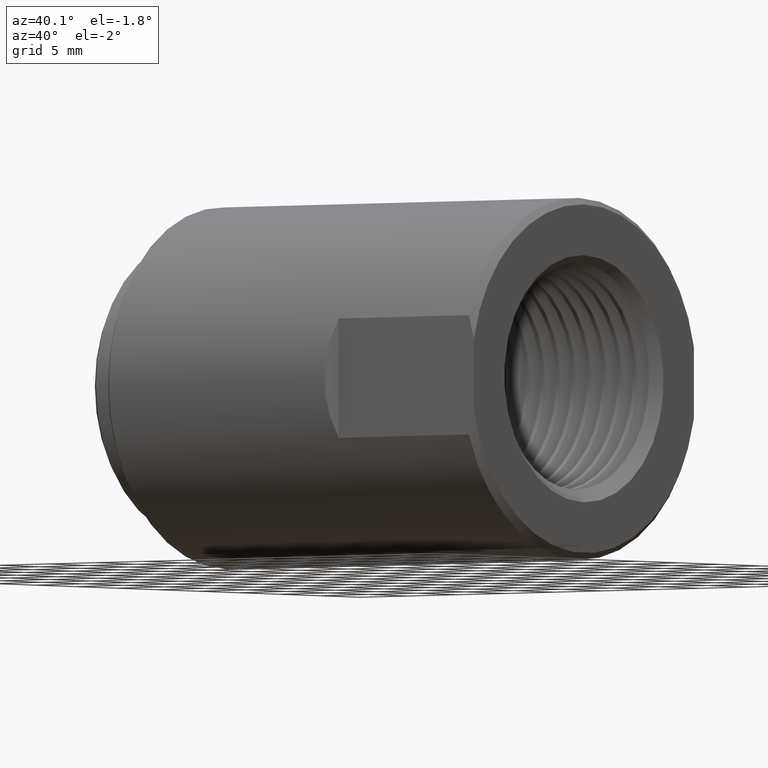
[diagram: clean part render]
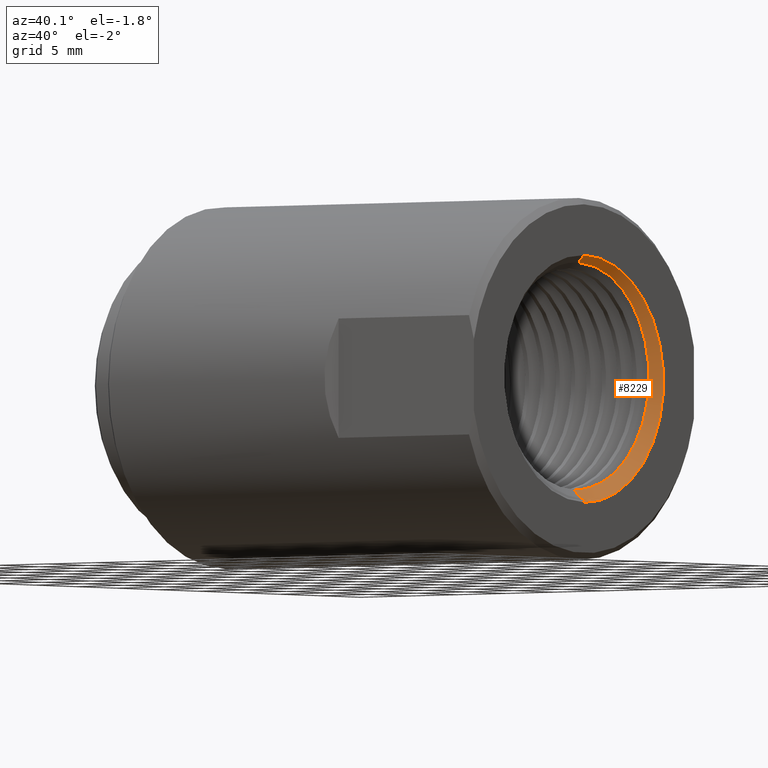
[diagram: same view with one face highlighted and labeled with its STEP entity id]
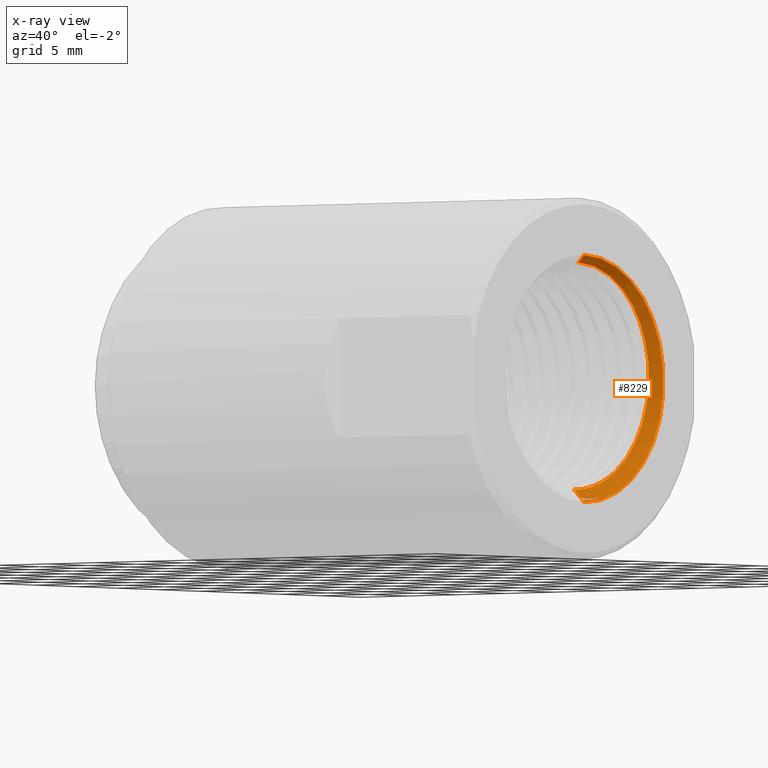
[diagram: x-ray of the same camera — body ghosted, the highlighted face saturated]
A machine part, auxiliary view. The second image highlights one B-rep face of the part: STEP entity #8229.
The next image is the same camera in x-ray: the body ghosted, the highlighted face saturated — about 0% of this face is hidden behind the body in this view.
In plain terms, the highlighted conical surface has half-angle 45 deg.
Its self-contained STEP definition (entity closure, byte-faithful):
#27 = CARTESIAN_POINT ( 'NONE',  ( 1.216849786774984343, 0.3493540093110745204, -0.03905227375527819955 ) ) ;
#50 = CARTESIAN_POINT ( 'NONE',  ( 1.243829117187500222, 0.09245632877387756354, -0.3668901671180582191 ) ) ;
#70 = CARTESIAN_POINT ( 'NONE',  ( 1.209999999999999964, 0.0000000000000000000, 0.0000000000000000000 ) ) ;
#137 = DIRECTION ( 'NONE',  ( 0.0000000000000000000, 0.0000000000000000000, 1.000000000000000000 ) ) ;
#295 = CARTESIAN_POINT ( 'NONE',  ( 1.250000000000000222, 0.0000000000000000000, 0.0000000000000000000 ) ) ;
#370 = CARTESIAN_POINT ( 'NONE',  ( 1.209999999999999964, 0.0000000000000000000, -0.3445312500000002331 ) ) ;
#417 = DIRECTION ( 'NONE',  ( 0.0000000000000000000, 0.0000000000000000000, -1.000000000000000000 ) ) ;
#524 = CARTESIAN_POINT ( 'NONE',  ( 1.250000000000000222, 0.0000000000000000000, -0.3845312500000003242 ) ) ;
#636 = CARTESIAN_POINT ( 'NONE',  ( 1.220653087215327615, 0.3134417992242269912, 0.1683160716923188804 ) ) ;
#680 = EDGE_CURVE ( 'NONE', #6292, #2899, #5685, .T. ) ;
#689 = CARTESIAN_POINT ( 'NONE',  ( 1.243829117187500222, 0.09245632877387756354, -0.3668901671180582191 ) ) ;
#716 = LINE ( 'NONE', #4379, #7811 ) ;
#760 = DIRECTION ( 'NONE',  ( -1.000000000000000000, -0.0000000000000000000, -0.0000000000000000000 ) ) ;
#885 = ORIENTED_EDGE ( 'NONE', *, *, #4357, .T. ) ;
#942 = CARTESIAN_POINT ( 'NONE',  ( 1.211885850623436234, 0.2160057076829183242, -0.2715927350444220512 ) ) ;
#1064 = CARTESIAN_POINT ( 'NONE',  ( 1.215932984245895021, 0.3395704241186347505, -0.08903494850300590346 ) ) ;
#1168 = DIRECTION ( 'NONE',  ( -1.000000000000000000, -0.0000000000000000000, -0.0000000000000000000 ) ) ;
#1256 = VERTEX_POINT ( 'NONE', #50 ) ;
#1331 = FACE_OUTER_BOUND ( 'NONE', #10155, .T. ) ;
#1430 = CARTESIAN_POINT ( 'NONE',  ( 1.226749488695773049, 0.04068672301004401526, 0.3595522263509164373 ) ) ;
#1551 = CARTESIAN_POINT ( 'NONE',  ( 1.222779556418133184, 0.2401296560682735504, 0.2653847520004636307 ) ) ;
#1559 = EDGE_CURVE ( 'NONE', #10875, #1256, #5657, .T. ) ;
#1721 = CARTESIAN_POINT ( 'NONE',  ( 1.238096552073818302, 4.563374450830151142E-17, -0.3726278020738184038 ) ) ;
#1727 = CARTESIAN_POINT ( 'NONE',  ( 1.215373208228787361, 0.3296514127122945892, -0.1177523029988790382 ) ) ;
#1752 = VERTEX_POINT ( 'NONE', #2846 ) ;
#1843 = CARTESIAN_POINT ( 'NONE',  ( 1.213136831506379965, 0.2675798709583786517, -0.2222088372663625633 ) ) ;
#1844 = CARTESIAN_POINT ( 'NONE',  ( 1.250000000000000222, 4.709149644846310570E-17, 0.3845312500000003242 ) ) ;
#1922 = B_SPLINE_CURVE_WITH_KNOTS ( 'NONE', 3,
 ( #7859, #9895, #1430, #5086, #10624, #11540, #2379, #4365, #2443, #1551, #5204, #6107, #8879, #636, #7976, #3397, #2497, #6161, #7310, #3564, #4537, #3691, #1965, #10136, #27, #6463, #1064, #1727, #7369, #9173, #11166, #9296, #5615, #1843, #3755, #7251, #4722, #942, #5495, #8395, #4600, #5433 ),
 .UNSPECIFIED., .F., .F.,
 ( 4, 2, 2, 2, 2, 2, 2, 2, 2, 2, 2, 2, 2, 2, 2, 2, 2, 2, 2, 2, 4 ),
 ( 0.02455092494079050974, 0.02610590275230841723, 0.02766088056382632471, 0.02921585837534423219, 0.03077083618686214314, 0.03232581399838005409, 0.03388079180989796158, 0.03543576962141586906, 0.03621325852717482280, 0.03699074743293377654, 0.03854572524445168402, 0.03932321415021063082, 0.04010070305596957763, 0.04165568086748748511, 0.04243316977324644579, 0.04321065867900539259, 0.04476563649052330007, 0.04554312539628224688, 0.04632061430204119368, 0.04787559211355910116, 0.04943056992507700170 ),
 .UNSPECIFIED. ) ;
#1965 = CARTESIAN_POINT ( 'NONE',  ( 1.217384145309095445, 0.3519595648555721157, -0.008517391885710171029 ) ) ;
#2379 = CARTESIAN_POINT ( 'NONE',  ( 1.224577951368953865, 0.1569011873644657329, 0.3236528847656646724 ) ) ;
#2443 = CARTESIAN_POINT ( 'NONE',  ( 1.223491400804909590, 0.2086464212371320626, 0.2916628110146198827 ) ) ;
#2497 = CARTESIAN_POINT ( 'NONE',  ( 1.219544793446149855, 0.3360668240153213970, 0.1119482197738754653 ) ) ;
#2540 = CARTESIAN_POINT ( 'NONE',  ( 1.243829117187500222, 4.633578126003893285E-17, -0.3783603671875002128 ) ) ;
#2550 = CARTESIAN_POINT ( 'NONE',  ( 1.250000000000000222, 0.0000000000000000000, -0.3845312500000003242 ) ) ;
#2597 = ORIENTED_EDGE ( 'NONE', *, *, #4453, .T. ) ;
#2641 = VERTEX_POINT ( 'NONE', #1844 ) ;
#2775 = AXIS2_PLACEMENT_3D ( 'NONE', #7184, #760, #9952 ) ;
#2846 = CARTESIAN_POINT ( 'NONE',  ( 1.250000000000000222, 0.0000000000000000000, -0.3845312500000003242 ) ) ;
#2899 = VERTEX_POINT ( 'NONE', #370 ) ;
#3397 = CARTESIAN_POINT ( 'NONE',  ( 1.219729728432891402, 0.3328988366051963133, 0.1215798709143322831 ) ) ;
#3399 = LINE ( 'NONE', #2550, #6781 ) ;
#3508 = CARTESIAN_POINT ( 'NONE',  ( 1.238096552073818302, 4.563374450830151142E-17, -0.3726278020738184038 ) ) ;
#3564 = CARTESIAN_POINT ( 'NONE',  ( 1.218435760731527040, 0.3496883693061835774, 0.05218449910433330119 ) ) ;
#3691 = CARTESIAN_POINT ( 'NONE',  ( 1.217555096698164974, 0.3522281482293163624, 0.001622987952658778033 ) ) ;
#3755 = CARTESIAN_POINT ( 'NONE',  ( 1.212956981108743504, 0.2608414048871103841, -0.2298129186828984094 ) ) ;
#4288 = CARTESIAN_POINT ( 'NONE',  ( 1.243829117187500444, 0.06225113146225663696, -0.3745018773888993402 ) ) ;
#4357 = EDGE_CURVE ( 'NONE', #2899, #10875, #7080, .T. ) ;
#4365 = CARTESIAN_POINT ( 'NONE',  ( 1.223852484540090213, 0.1919265343642179988, 0.3033362169202862835 ) ) ;
#4379 = CARTESIAN_POINT ( 'NONE',  ( 1.250000000000000222, 4.709149644846310570E-17, 0.3845312500000003242 ) ) ;
#4453 = EDGE_CURVE ( 'NONE', #4607, #6292, #1922, .T. ) ;
#4537 = CARTESIAN_POINT ( 'NONE',  ( 1.218077446555142940, 0.3517372571203507547, 0.03199722948192060268 ) ) ;
#4595 = CARTESIAN_POINT ( 'NONE',  ( 1.241882642815904214, 0.06184354998524212860, -0.3716189419748296419 ) ) ;
#4600 = CARTESIAN_POINT ( 'NONE',  ( 1.210385770179390308, 0.1461959647625259984, -0.3130757294868317664 ) ) ;
#4607 = VERTEX_POINT ( 'NONE', #5909 ) ;
#4722 = CARTESIAN_POINT ( 'NONE',  ( 1.212424647590123250, 0.2391561038309841791, -0.2515687199196105506 ) ) ;
#4985 = DIRECTION ( 'NONE',  ( 1.000000000000000000, 0.0000000000000000000, 0.0000000000000000000 ) ) ;
#5086 = CARTESIAN_POINT ( 'NONE',  ( 1.226042025941995739, 0.08046324323471286399, 0.3520627707701105003 ) ) ;
#5204 = CARTESIAN_POINT ( 'NONE',  ( 1.222444759342730558, 0.2545453349184866321, 0.2510939977363889075 ) ) ;
#5433 = CARTESIAN_POINT ( 'NONE',  ( 1.209999999999999742, 0.1269585459712147535, -0.3202862935428826274 ) ) ;
#5495 = CARTESIAN_POINT ( 'NONE',  ( 1.211519045037208420, 0.1995677568362117515, -0.2834330074546717038 ) ) ;
#5615 = CARTESIAN_POINT ( 'NONE',  ( 1.213681650256493993, 0.2867388275638955153, -0.1986044004661007278 ) ) ;
#5646 = VECTOR ( 'NONE', #7915, 39.37007874015748143 ) ;
#5657 = B_SPLINE_CURVE_WITH_KNOTS ( 'NONE', 3,
 ( #1721, #9101, #7181, #4595, #11654, #9949 ),
 .UNSPECIFIED., .F., .F.,
 ( 4, 2, 4 ),
 ( 0.01093648437375123461, 0.01211465202260137049, 0.01329281967145150636 ),
 .UNSPECIFIED. ) ;
#5685 = CIRCLE ( 'NONE', #11452, 0.3445312500000002331 ) ;
#5762 = ORIENTED_EDGE ( 'NONE', *, *, #11013, .T. ) ;
#5909 = CARTESIAN_POINT ( 'NONE',  ( 1.227434301395928129, 0.0000000000000000000, 0.3619655513959281756 ) ) ;
#6001 = B_SPLINE_CURVE_WITH_KNOTS ( 'NONE', 3,
 ( #689, #4288, #7964, #2540 ),
 .UNSPECIFIED., .F., .F.,
 ( 4, 4 ),
 ( 3.576224061345498163E-17, 0.002373086526508532031 ),
 .UNSPECIFIED. ) ;
#6107 = CARTESIAN_POINT ( 'NONE',  ( 1.221749674485613335, 0.2807742037666627888, 0.2202534804112405709 ) ) ;
#6161 = CARTESIAN_POINT ( 'NONE',  ( 1.219174633214921810, 0.3415850148446688550, 0.09236340739827741952 ) ) ;
#6170 = EDGE_CURVE ( 'NONE', #10222, #1752, #3399, .T. ) ;
#6292 = VERTEX_POINT ( 'NONE', #10138 ) ;
#6463 = CARTESIAN_POINT ( 'NONE',  ( 1.216302133679144193, 0.3445157304189757075, -0.06936611713296685078 ) ) ;
#6674 = ORIENTED_EDGE ( 'NONE', *, *, #680, .T. ) ;
#6778 = EDGE_CURVE ( 'NONE', #2641, #1752, #7008, .T. ) ;
#6781 = VECTOR ( 'NONE', #11662, 39.37007874015748143 ) ;
#7008 = CIRCLE ( 'NONE', #2775, 0.3845312500000003242 ) ;
#7080 = LINE ( 'NONE', #524, #5646 ) ;
#7181 = CARTESIAN_POINT ( 'NONE',  ( 1.239969797975295718, 0.03099932599615088866, -0.3735343635153591801 ) ) ;
#7184 = CARTESIAN_POINT ( 'NONE',  ( 1.250000000000000222, 0.0000000000000000000, 0.0000000000000000000 ) ) ;
#7251 = CARTESIAN_POINT ( 'NONE',  ( 1.212600914353763493, 0.2466448716032826061, -0.2444814761463104114 ) ) ;
#7310 = CARTESIAN_POINT ( 'NONE',  ( 1.218988651837447978, 0.3439426771052916387, 0.08236882048635595088 ) ) ;
#7369 = CARTESIAN_POINT ( 'NONE',  ( 1.215185603457375363, 0.3259258135036293136, -0.1271930119883612209 ) ) ;
#7564 = CARTESIAN_POINT ( 'NONE',  ( 1.243829117187500222, 4.633578126003893285E-17, -0.3783603671875002128 ) ) ;
#7811 = VECTOR ( 'NONE', #8050, 39.37007874015748143 ) ;
#7818 = ORIENTED_EDGE ( 'NONE', *, *, #10147, .F. ) ;
#7859 = CARTESIAN_POINT ( 'NONE',  ( 1.227434301395928129, 0.0000000000000000000, 0.3619655513959281756 ) ) ;
#7915 = DIRECTION ( 'NONE',  ( 0.7071067811865493491, 0.0000000000000000000, -0.7071067811865456854 ) ) ;
#7964 = CARTESIAN_POINT ( 'NONE',  ( 1.243829117187500222, 0.03112291469434908670, -0.3783603671875002128 ) ) ;
#7976 = CARTESIAN_POINT ( 'NONE',  ( 1.220284095741231756, 0.3221861074435999339, 0.1499996002709583776 ) ) ;
#8050 = DIRECTION ( 'NONE',  ( 0.7071067811865493491, 8.659560562354910671E-17, 0.7071067811865456854 ) ) ;
#8229 = ADVANCED_FACE ( 'NONE', ( #1331 ), #9904, .F. ) ;
#8366 = AXIS2_PLACEMENT_3D ( 'NONE', #295, #4985, #417 ) ;
#8395 = CARTESIAN_POINT ( 'NONE',  ( 1.210770186898505241, 0.1647227870885436263, -0.3041549577535317961 ) ) ;
#8747 = ORIENTED_EDGE ( 'NONE', *, *, #1559, .T. ) ;
#8879 = CARTESIAN_POINT ( 'NONE',  ( 1.221389961076117858, 0.2926266024514628805, 0.2036411749115752401 ) ) ;
#9101 = CARTESIAN_POINT ( 'NONE',  ( 1.239019632932548021, 0.01541558026786328355, -0.3735508829325481783 ) ) ;
#9173 = CARTESIAN_POINT ( 'NONE',  ( 1.214808321454999618, 0.3176201860635644580, -0.1458059470798638291 ) ) ;
#9296 = CARTESIAN_POINT ( 'NONE',  ( 1.214051840293475903, 0.2981109147185714847, -0.1818178800172867426 ) ) ;
#9895 = CARTESIAN_POINT ( 'NONE',  ( 1.227095712018400508, 0.02049901501158285858, 0.3616269620184011102 ) ) ;
#9904 = CONICAL_SURFACE ( 'NONE', #8366, 0.3845312500000003242, 0.7853981633974457255 ) ;
#9949 = CARTESIAN_POINT ( 'NONE',  ( 1.243829117187500222, 0.09245632877387756354, -0.3668901671180582191 ) ) ;
#9952 = DIRECTION ( 'NONE',  ( 0.0000000000000000000, 0.0000000000000000000, 1.000000000000000000 ) ) ;
#10136 = CARTESIAN_POINT ( 'NONE',  ( 1.217030946357690713, 0.3505259330648257121, -0.02883026117082588755 ) ) ;
#10138 = CARTESIAN_POINT ( 'NONE',  ( 1.209999999999999742, 0.1269585459712147535, -0.3202862935428826274 ) ) ;
#10143 = ORIENTED_EDGE ( 'NONE', *, *, #6778, .F. ) ;
#10147 = EDGE_CURVE ( 'NONE', #4607, #2641, #716, .T. ) ;
#10155 = EDGE_LOOP ( 'NONE', ( #7818, #2597, #6674, #885, #8747, #5762, #10984, #10143 ) ) ;
#10222 = VERTEX_POINT ( 'NONE', #7564 ) ;
#10624 = CARTESIAN_POINT ( 'NONE',  ( 1.225679903020099992, 0.1000982435388035607, 0.3466309060654602092 ) ) ;
#10875 = VERTEX_POINT ( 'NONE', #3508 ) ;
#10984 = ORIENTED_EDGE ( 'NONE', *, *, #6170, .T. ) ;
#11013 = EDGE_CURVE ( 'NONE', #1256, #10222, #6001, .T. ) ;
#11166 = CARTESIAN_POINT ( 'NONE',  ( 1.214617704470433157, 0.3130137676441862582, -0.1550219200804583142 ) ) ;
#11452 = AXIS2_PLACEMENT_3D ( 'NONE', #70, #1168, #137 ) ;
#11540 = CARTESIAN_POINT ( 'NONE',  ( 1.224943394697123100, 0.1385489153750009694, 0.3323353530212811990 ) ) ;
#11654 = CARTESIAN_POINT ( 'NONE',  ( 1.242850354312295291, 0.07718889598568211274, -0.3697281982180066207 ) ) ;
#11662 = DIRECTION ( 'NONE',  ( 0.7071067811865493491, 0.0000000000000000000, -0.7071067811865456854 ) ) ;